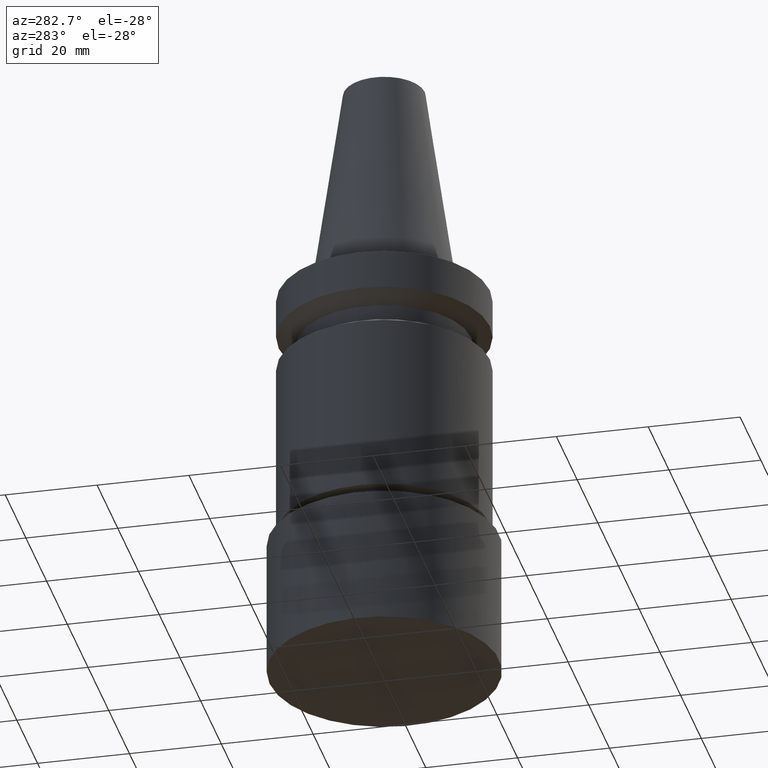
[diagram: clean part render]
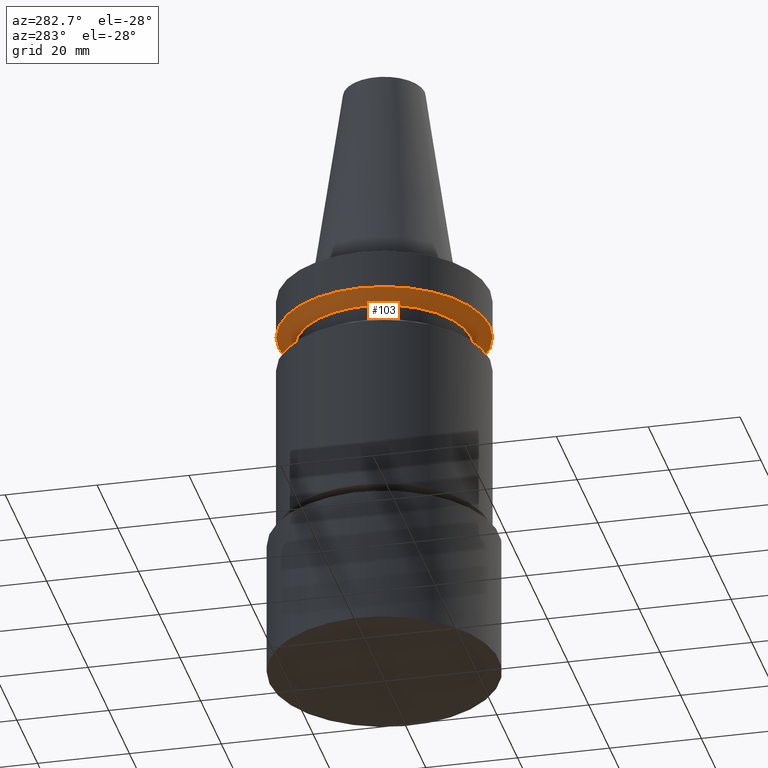
[diagram: same view with one face highlighted and labeled with its STEP entity id]
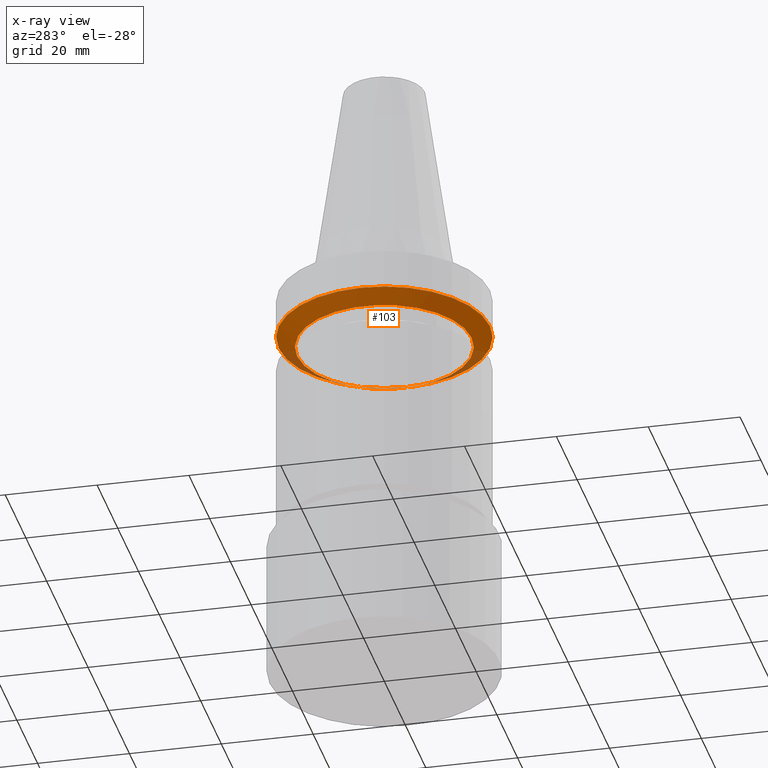
[diagram: x-ray of the same camera — body ghosted, the highlighted face saturated]
A machine part, auxiliary view. The second image highlights one B-rep face of the part: STEP entity #103.
The next image is the same camera in x-ray: the body ghosted, the highlighted face saturated — about 11% of this face is hidden behind the body in this view.
In plain terms, the highlighted conical surface has half-angle 60 deg.
Its self-contained STEP definition (entity closure, byte-faithful):
#103=ADVANCED_FACE('Unnamed[1]',(#233,#234),#235,.T.);
#143=EDGE_CURVE('Unnamed[1]',#295,#295,#296,.T.);
#145=EDGE_CURVE('Unnamed[1]',#298,#298,#299,.T.);
#233=FACE_BOUND('',#397,.T.);
#234=FACE_BOUND('',#398,.T.);
#235=CONICAL_SURFACE('',#399,21.0,1.04719755058881);
#295=VERTEX_POINT('',#476);
#296=CIRCLE('',#477,19.0);
#298=VERTEX_POINT('',#480);
#299=CIRCLE('',#481,23.0);
#397=EDGE_LOOP('',(#567));
#398=EDGE_LOOP('',(#568));
#399=AXIS2_PLACEMENT_3D('',#569,#570,#571);
#476=CARTESIAN_POINT('',(7.29240495619202E-016,19.0,-11.90940108));
#477=AXIS2_PLACEMENT_3D('',#636,#637,#638);
#480=CARTESIAN_POINT('',(5.87830463590729E-016,23.0,-9.59999999999999));
#481=AXIS2_PLACEMENT_3D('',#639,#640,#641);
#567=ORIENTED_EDGE('',*,*,#143,.F.);
#568=ORIENTED_EDGE('',*,*,#145,.T.);
#569=CARTESIAN_POINT('',(6.58535479604966E-016,1.31707095920993E-015,-10.75470054));
#570=DIRECTION('',(-6.12323399573677E-017,-1.22464679914735E-016,1.0));
#571=DIRECTION('',(-1.23259516440783E-032,1.0,1.22464679914735E-016));
#636=CARTESIAN_POINT('',(7.29240495619202E-016,1.4584809912384E-015,-11.90940108));
#637=DIRECTION('',(6.12323399573677E-017,1.22464679914735E-016,-1.0));
#638=DIRECTION('',(-1.23259516440783E-032,1.0,1.22464679914735E-016));
#639=CARTESIAN_POINT('',(5.87830463590729E-016,1.17566092718146E-015,-9.59999999999999));
#640=DIRECTION('',(6.12323399573677E-017,1.22464679914735E-016,-1.0));
#641=DIRECTION('',(-1.23259516440783E-032,1.0,1.22464679914735E-016));